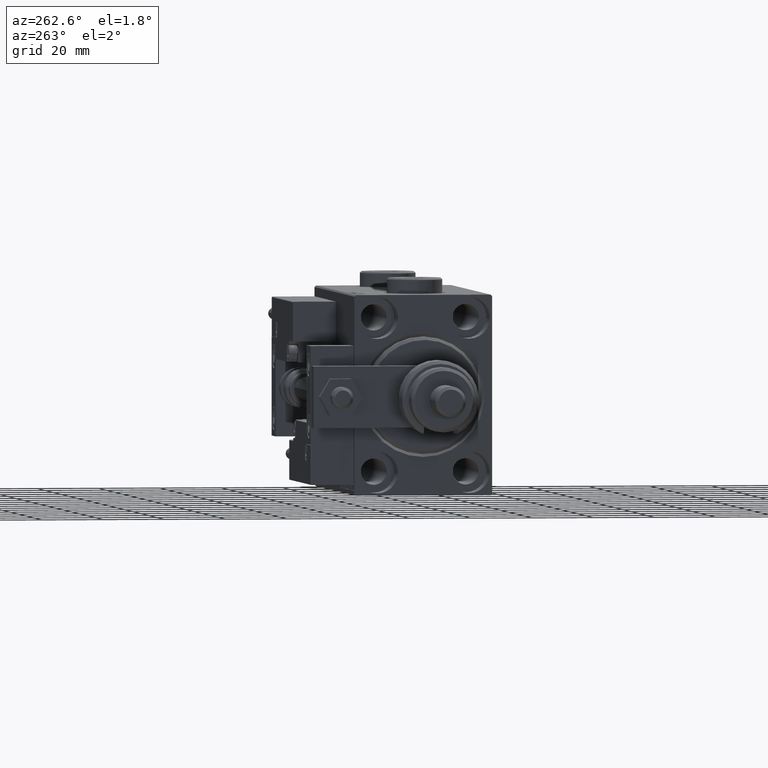
[diagram: clean part render]
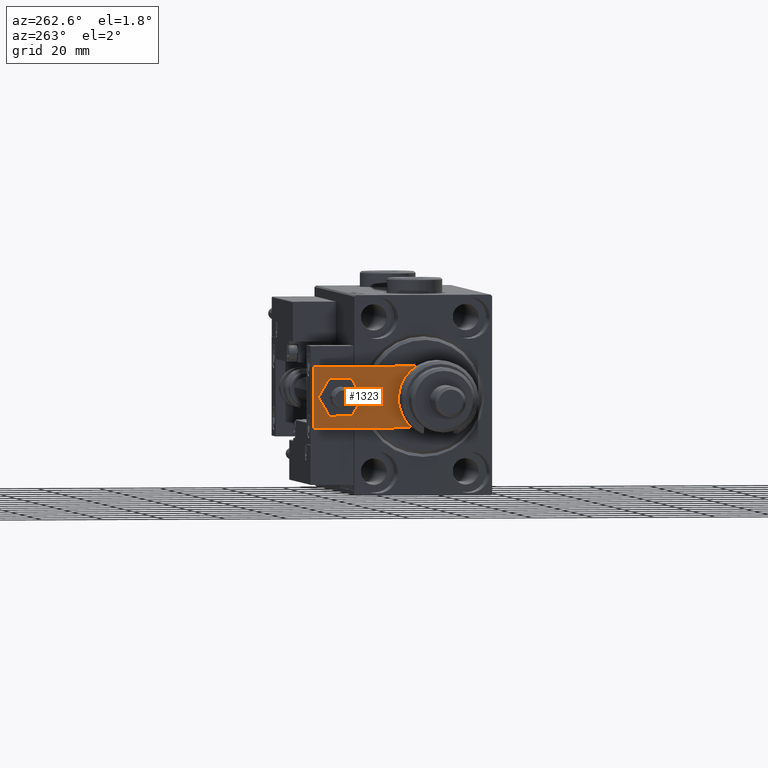
[diagram: same view with one face highlighted and labeled with its STEP entity id]
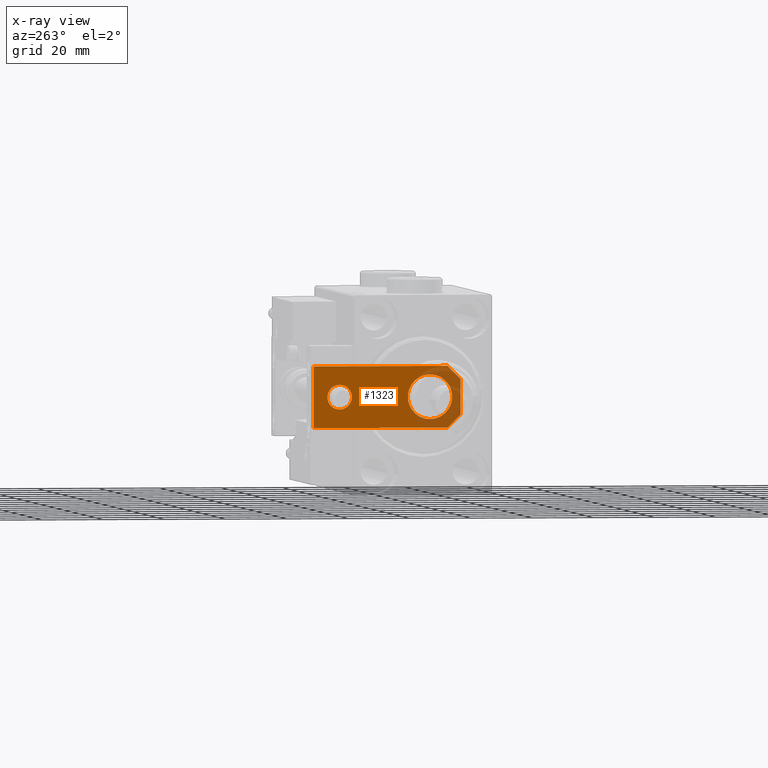
[diagram: x-ray of the same camera — body ghosted, the highlighted face saturated]
A machine part, auxiliary view. The second image highlights one B-rep face of the part: STEP entity #1323.
The next image is the same camera in x-ray: the body ghosted, the highlighted face saturated — about 16% of this face is hidden behind the body in this view.
In plain terms, the highlighted planar face has unit normal (-1, 0, 0).
Its self-contained STEP definition (entity closure, byte-faithful):
#271 = ORIENTED_EDGE ( 'NONE', *, *, #20750, .F. ) ;
#1323 = ADVANCED_FACE ( 'NONE', ( #49759, #3586, #20621 ), #7970, .T. ) ;
#2183 = DIRECTION ( 'NONE',  ( -1.084202172485504434E-16, -1.000000000000000000, 0.000000000000000000 ) ) ;
#2203 = DIRECTION ( 'NONE',  ( -7.228014483236695816E-17, 1.000000000000000000, 0.000000000000000000 ) ) ;
#2306 = CIRCLE ( 'NONE', #47083, 4.000000000000000888 ) ;
#2847 = VERTEX_POINT ( 'NONE', #39139 ) ;
#3260 = CARTESIAN_POINT ( 'NONE',  ( 10.00000000000000178, 48.00000000000000000, 6.000000000000000000 ) ) ;
#3586 = FACE_OUTER_BOUND ( 'NONE', #39606, .T. ) ;
#3762 = CARTESIAN_POINT ( 'NONE',  ( 5.759999999999998010, 0.000000000000000000, 6.000000000000000000 ) ) ;
#5421 = VERTEX_POINT ( 'NONE', #3260 ) ;
#6308 = CARTESIAN_POINT ( 'NONE',  ( -10.00000000000000000, 48.00000000000000000, 6.000000000000000000 ) ) ;
#6665 = ORIENTED_EDGE ( 'NONE', *, *, #12025, .T. ) ;
#6720 = CARTESIAN_POINT ( 'NONE',  ( -10.00000000000000533, 0.000000000000000000, 6.000000000000000000 ) ) ;
#7653 = CARTESIAN_POINT ( 'NONE',  ( -10.00000000000000000, 48.00000000000000000, 6.000000000000000000 ) ) ;
#7799 = AXIS2_PLACEMENT_3D ( 'NONE', #46889, #9770, #51303 ) ;
#7970 = PLANE ( 'NONE',  #51727 ) ;
#8573 = ORIENTED_EDGE ( 'NONE', *, *, #10221, .T. ) ;
#8633 = LINE ( 'NONE', #41893, #35889 ) ;
#9231 = EDGE_LOOP ( 'NONE', ( #26652, #11865 ) ) ;
#9343 = AXIS2_PLACEMENT_3D ( 'NONE', #14127, #26766, #18255 ) ;
#9668 = CARTESIAN_POINT ( 'NONE',  ( -1.432611055310774642E-16, 39.50000000000000000, 6.000000000000000000 ) ) ;
#9770 = DIRECTION ( 'NONE',  ( 0.000000000000000000, 0.000000000000000000, 1.000000000000000000 ) ) ;
#10221 = EDGE_CURVE ( 'NONE', #19846, #10885, #48770, .T. ) ;
#10346 = VECTOR ( 'NONE', #14825, 1000.000000000000000 ) ;
#10885 = VERTEX_POINT ( 'NONE', #3762 ) ;
#11742 = CARTESIAN_POINT ( 'NONE',  ( -1.432611055310774642E-16, 39.50000000000000000, 6.000000000000000000 ) ) ;
#11865 = ORIENTED_EDGE ( 'NONE', *, *, #47890, .F. ) ;
#12025 = EDGE_CURVE ( 'NONE', #36480, #46678, #51937, .T. ) ;
#14127 = CARTESIAN_POINT ( 'NONE',  ( -9.629649721936179265E-32, 10.00000000000000178, 6.000000000000000000 ) ) ;
#14825 = DIRECTION ( 'NONE',  ( -1.000000000000000000, 0.000000000000000000, 0.000000000000000000 ) ) ;
#14930 = CARTESIAN_POINT ( 'NONE',  ( -5.759999999999997122, 0.000000000000000000, 6.000000000000000000 ) ) ;
#18255 = DIRECTION ( 'NONE',  ( 1.000000000000000000, 0.000000000000000000, 0.000000000000000000 ) ) ;
#18309 = DIRECTION ( 'NONE',  ( 0.7071067811865492381, 0.7071067811865457964, -0.000000000000000000 ) ) ;
#19436 = ORIENTED_EDGE ( 'NONE', *, *, #33958, .T. ) ;
#19846 = VERTEX_POINT ( 'NONE', #14930 ) ;
#20365 = EDGE_LOOP ( 'NONE', ( #271, #41817 ) ) ;
#20621 = FACE_BOUND ( 'NONE', #9231, .T. ) ;
#20750 = EDGE_CURVE ( 'NONE', #2847, #37568, #2306, .T. ) ;
#22021 = CIRCLE ( 'NONE', #33405, 4.000000000000000888 ) ;
#23969 = ORIENTED_EDGE ( 'NONE', *, *, #29898, .T. ) ;
#24475 = CARTESIAN_POINT ( 'NONE',  ( 0.000000000000000000, 0.000000000000000000, 6.000000000000000000 ) ) ;
#24749 = DIRECTION ( 'NONE',  ( -0.000000000000000000, 0.000000000000000000, 1.000000000000000000 ) ) ;
#26174 = DIRECTION ( 'NONE',  ( 0.000000000000000000, 0.000000000000000000, 1.000000000000000000 ) ) ;
#26249 = CARTESIAN_POINT ( 'NONE',  ( 4.000000000000000888, 39.50000000000000000, 6.000000000000000000 ) ) ;
#26652 = ORIENTED_EDGE ( 'NONE', *, *, #26817, .F. ) ;
#26673 = CARTESIAN_POINT ( 'NONE',  ( -10.00000000000000533, 4.240000000000021529, 6.000000000000000000 ) ) ;
#26766 = DIRECTION ( 'NONE',  ( 0.000000000000000000, 0.000000000000000000, 1.000000000000000000 ) ) ;
#26817 = EDGE_CURVE ( 'NONE', #34723, #33320, #28002, .T. ) ;
#27046 = EDGE_CURVE ( 'NONE', #46678, #19846, #8633, .T. ) ;
#27092 = CARTESIAN_POINT ( 'NONE',  ( 2.879999999999984350, -2.879999999999999005, 6.000000000000000000 ) ) ;
#27330 = DIRECTION ( 'NONE',  ( 1.000000000000000000, 0.000000000000000000, 0.000000000000000000 ) ) ;
#28002 = CIRCLE ( 'NONE', #7799, 7.250000000000000000 ) ;
#28702 = DIRECTION ( 'NONE',  ( 0.7071067811865464625, -0.7071067811865486830, 0.000000000000000000 ) ) ;
#29213 = VECTOR ( 'NONE', #2183, 1000.000000000000000 ) ;
#29898 = EDGE_CURVE ( 'NONE', #10885, #36995, #39474, .T. ) ;
#30294 = DIRECTION ( 'NONE',  ( 1.000000000000000000, 0.000000000000000000, 0.000000000000000000 ) ) ;
#31323 = LINE ( 'NONE', #51694, #37816 ) ;
#33320 = VERTEX_POINT ( 'NONE', #48364 ) ;
#33405 = AXIS2_PLACEMENT_3D ( 'NONE', #11742, #52719, #40614 ) ;
#33958 = EDGE_CURVE ( 'NONE', #36995, #5421, #31323, .T. ) ;
#34502 = EDGE_CURVE ( 'NONE', #37568, #2847, #22021, .T. ) ;
#34723 = VERTEX_POINT ( 'NONE', #45472 ) ;
#35669 = CIRCLE ( 'NONE', #9343, 7.250000000000000000 ) ;
#35889 = VECTOR ( 'NONE', #28702, 999.9999999999998863 ) ;
#36480 = VERTEX_POINT ( 'NONE', #7653 ) ;
#36995 = VERTEX_POINT ( 'NONE', #42062 ) ;
#37568 = VERTEX_POINT ( 'NONE', #26249 ) ;
#37816 = VECTOR ( 'NONE', #2203, 1000.000000000000000 ) ;
#39139 = CARTESIAN_POINT ( 'NONE',  ( -4.000000000000000888, 39.50000000000000000, 6.000000000000000000 ) ) ;
#39474 = LINE ( 'NONE', #27092, #53609 ) ;
#39606 = EDGE_LOOP ( 'NONE', ( #6665, #52541, #8573, #23969, #19436, #53057 ) ) ;
#39835 = CARTESIAN_POINT ( 'NONE',  ( 10.00000000000000178, 48.00000000000000000, 6.000000000000000000 ) ) ;
#40407 = DIRECTION ( 'NONE',  ( 1.000000000000000000, 0.000000000000000000, 0.000000000000000000 ) ) ;
#40614 = DIRECTION ( 'NONE',  ( 1.000000000000000000, 0.000000000000000000, 0.000000000000000000 ) ) ;
#41817 = ORIENTED_EDGE ( 'NONE', *, *, #34502, .F. ) ;
#41893 = CARTESIAN_POINT ( 'NONE',  ( -2.880000000000006999, -2.879999999999998561, 6.000000000000000000 ) ) ;
#42062 = CARTESIAN_POINT ( 'NONE',  ( 10.00000000000000533, 4.239999999999986890, 6.000000000000000000 ) ) ;
#43688 = LINE ( 'NONE', #39835, #10346 ) ;
#45083 = VECTOR ( 'NONE', #27330, 1000.000000000000000 ) ;
#45472 = CARTESIAN_POINT ( 'NONE',  ( -7.250000000000000000, 10.00000000000000178, 6.000000000000000000 ) ) ;
#46678 = VERTEX_POINT ( 'NONE', #26673 ) ;
#46889 = CARTESIAN_POINT ( 'NONE',  ( -9.629649721936179265E-32, 10.00000000000000178, 6.000000000000000000 ) ) ;
#47083 = AXIS2_PLACEMENT_3D ( 'NONE', #9668, #26174, #30294 ) ;
#47890 = EDGE_CURVE ( 'NONE', #33320, #34723, #35669, .T. ) ;
#48364 = CARTESIAN_POINT ( 'NONE',  ( 7.250000000000000000, 10.00000000000000355, 6.000000000000000000 ) ) ;
#48770 = LINE ( 'NONE', #6720, #45083 ) ;
#49759 = FACE_BOUND ( 'NONE', #20365, .T. ) ;
#51303 = DIRECTION ( 'NONE',  ( 1.000000000000000000, 0.000000000000000000, 0.000000000000000000 ) ) ;
#51694 = CARTESIAN_POINT ( 'NONE',  ( 10.00000000000000533, 0.000000000000000000, 6.000000000000000000 ) ) ;
#51727 = AXIS2_PLACEMENT_3D ( 'NONE', #24475, #24749, #40407 ) ;
#51937 = LINE ( 'NONE', #6308, #29213 ) ;
#52009 = EDGE_CURVE ( 'NONE', #5421, #36480, #43688, .T. ) ;
#52541 = ORIENTED_EDGE ( 'NONE', *, *, #27046, .T. ) ;
#52719 = DIRECTION ( 'NONE',  ( 0.000000000000000000, 0.000000000000000000, 1.000000000000000000 ) ) ;
#53057 = ORIENTED_EDGE ( 'NONE', *, *, #52009, .T. ) ;
#53609 = VECTOR ( 'NONE', #18309, 1000.000000000000114 ) ;